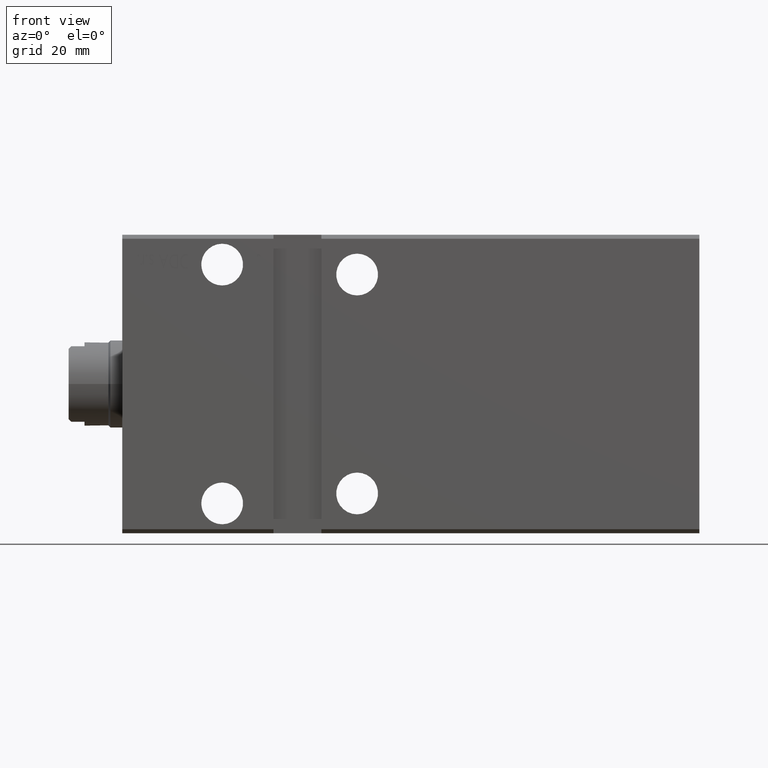
[diagram: clean part render]
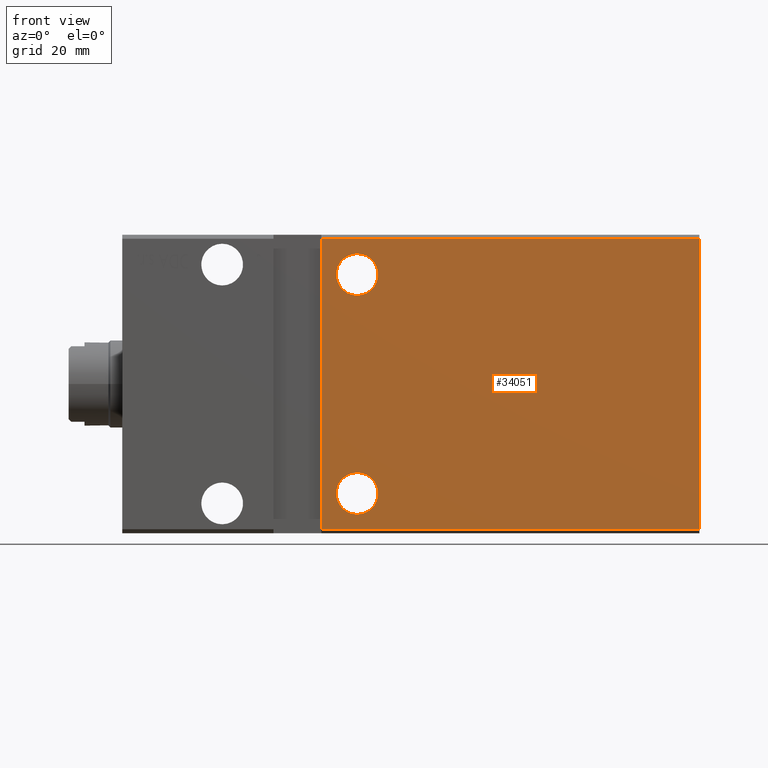
[diagram: same view with one face highlighted and labeled with its STEP entity id]
A machine part, front view. The second image highlights one B-rep face of the part: STEP entity #34051.
In plain terms, the highlighted planar face has unit normal (0, 1, 0).
Its self-contained STEP definition (entity closure, byte-faithful):
#284 = LINE ( 'NONE', #15479, #21459 ) ;
#1167 = CIRCLE ( 'NONE', #16465, 5.250000000000004441 ) ;
#1399 = CARTESIAN_POINT ( 'NONE',  ( 59.00000000000000711, -27.50000000000000355, 27.49999999999999645 ) ) ;
#1527 = CARTESIAN_POINT ( 'NONE',  ( 59.00000000000000711, -27.50000000000000355, 32.74999999999999289 ) ) ;
#1874 = FACE_OUTER_BOUND ( 'NONE', #30192, .T. ) ;
#3062 = DIRECTION ( 'NONE',  ( 0.000000000000000000, -1.000000000000000000, -5.507058653894625853E-17 ) ) ;
#3243 = ORIENTED_EDGE ( 'NONE', *, *, #32302, .T. ) ;
#3660 = AXIS2_PLACEMENT_3D ( 'NONE', #1399, #35352, #7964 ) ;
#4596 = AXIS2_PLACEMENT_3D ( 'NONE', #12598, #16005, #28193 ) ;
#4894 = EDGE_CURVE ( 'NONE', #12722, #13821, #37974, .T. ) ;
#6531 = EDGE_CURVE ( 'NONE', #37508, #12722, #32692, .T. ) ;
#6564 = VECTOR ( 'NONE', #10780, 1000.000000000000000 ) ;
#7830 = CARTESIAN_POINT ( 'NONE',  ( 145.0000000000000000, -27.50000000000000711, 36.50000000000000711 ) ) ;
#7964 = DIRECTION ( 'NONE',  ( 0.000000000000000000, 0.000000000000000000, 1.000000000000000000 ) ) ;
#8465 = VERTEX_POINT ( 'NONE', #32858 ) ;
#8950 = EDGE_LOOP ( 'NONE', ( #25914, #24065 ) ) ;
#9767 = VERTEX_POINT ( 'NONE', #25660 ) ;
#9805 = VERTEX_POINT ( 'NONE', #28672 ) ;
#10282 = FACE_BOUND ( 'NONE', #29711, .T. ) ;
#10780 = DIRECTION ( 'NONE',  ( -0.000000000000000000, -9.251858538542971581E-17, 1.000000000000000000 ) ) ;
#11056 = EDGE_CURVE ( 'NONE', #30209, #39244, #18623, .T. ) ;
#12335 = CARTESIAN_POINT ( 'NONE',  ( 145.0000000000000000, -27.50000000000000711, 36.50000000000000711 ) ) ;
#12598 = CARTESIAN_POINT ( 'NONE',  ( 59.00000000000000711, -27.50000000000000355, 27.49999999999999645 ) ) ;
#12722 = VERTEX_POINT ( 'NONE', #17731 ) ;
#13821 = VERTEX_POINT ( 'NONE', #36440 ) ;
#15035 = ORIENTED_EDGE ( 'NONE', *, *, #4894, .F. ) ;
#15479 = CARTESIAN_POINT ( 'NONE',  ( 145.0000000000000000, -27.50000000000000711, 36.50000000000000711 ) ) ;
#16005 = DIRECTION ( 'NONE',  ( -0.000000000000000000, 1.000000000000000000, 5.507058653894625853E-17 ) ) ;
#16465 = AXIS2_PLACEMENT_3D ( 'NONE', #36227, #3062, #18448 ) ;
#17043 = AXIS2_PLACEMENT_3D ( 'NONE', #7830, #23440, #20048 ) ;
#17731 = CARTESIAN_POINT ( 'NONE',  ( 49.99999999999999289, -27.50000000000000000, -36.49999999999997868 ) ) ;
#18448 = DIRECTION ( 'NONE',  ( 0.000000000000000000, 0.000000000000000000, -1.000000000000000000 ) ) ;
#18549 = ORIENTED_EDGE ( 'NONE', *, *, #37677, .T. ) ;
#18623 = CIRCLE ( 'NONE', #4596, 5.249999999999997335 ) ;
#19573 = EDGE_CURVE ( 'NONE', #8465, #37508, #30924, .T. ) ;
#20048 = DIRECTION ( 'NONE',  ( 0.000000000000000000, -4.752667057470705491E-17, 1.000000000000000000 ) ) ;
#21459 = VECTOR ( 'NONE', #31252, 1000.000000000000000 ) ;
#22674 = CARTESIAN_POINT ( 'NONE',  ( 59.00000000000001421, -27.50000000000000355, -27.50000000000000355 ) ) ;
#23429 = CIRCLE ( 'NONE', #3660, 5.249999999999997335 ) ;
#23440 = DIRECTION ( 'NONE',  ( -0.000000000000000000, 1.000000000000000000, 4.752667057470705491E-17 ) ) ;
#24064 = CIRCLE ( 'NONE', #25972, 5.250000000000004441 ) ;
#24065 = ORIENTED_EDGE ( 'NONE', *, *, #26905, .F. ) ;
#25660 = CARTESIAN_POINT ( 'NONE',  ( 59.00000000000001421, -27.50000000000000355, -32.75000000000000711 ) ) ;
#25834 = CARTESIAN_POINT ( 'NONE',  ( 145.0000000000000000, -27.50000000000000355, -36.49999999999998579 ) ) ;
#25914 = ORIENTED_EDGE ( 'NONE', *, *, #30260, .F. ) ;
#25972 = AXIS2_PLACEMENT_3D ( 'NONE', #22674, #34293, #31680 ) ;
#26349 = VECTOR ( 'NONE', #27149, 1000.000000000000000 ) ;
#26905 = EDGE_CURVE ( 'NONE', #9805, #9767, #1167, .T. ) ;
#27038 = FACE_BOUND ( 'NONE', #8950, .T. ) ;
#27149 = DIRECTION ( 'NONE',  ( 0.000000000000000000, 4.752667057470705491E-17, -1.000000000000000000 ) ) ;
#27314 = CARTESIAN_POINT ( 'NONE',  ( 145.0000000000000000, -27.50000000000000355, -36.49999999999998579 ) ) ;
#28193 = DIRECTION ( 'NONE',  ( 0.000000000000000000, 0.000000000000000000, 1.000000000000000000 ) ) ;
#28672 = CARTESIAN_POINT ( 'NONE',  ( 59.00000000000001421, -27.50000000000000355, -22.25000000000000000 ) ) ;
#29711 = EDGE_LOOP ( 'NONE', ( #34898, #18549 ) ) ;
#30097 = ORIENTED_EDGE ( 'NONE', *, *, #19573, .F. ) ;
#30192 = EDGE_LOOP ( 'NONE', ( #3243, #15035, #33759, #30097 ) ) ;
#30209 = VERTEX_POINT ( 'NONE', #37483 ) ;
#30260 = EDGE_CURVE ( 'NONE', #9767, #9805, #24064, .T. ) ;
#30924 = LINE ( 'NONE', #12335, #26349 ) ;
#31252 = DIRECTION ( 'NONE',  ( -1.000000000000000000, -0.000000000000000000, -0.000000000000000000 ) ) ;
#31680 = DIRECTION ( 'NONE',  ( 0.000000000000000000, 0.000000000000000000, -1.000000000000000000 ) ) ;
#32302 = EDGE_CURVE ( 'NONE', #8465, #13821, #284, .T. ) ;
#32692 = LINE ( 'NONE', #27314, #35991 ) ;
#32858 = CARTESIAN_POINT ( 'NONE',  ( 145.0000000000000000, -27.50000000000000711, 36.50000000000000711 ) ) ;
#33759 = ORIENTED_EDGE ( 'NONE', *, *, #6531, .F. ) ;
#34051 = ADVANCED_FACE ( 'NONE', ( #27038, #1874, #10282 ), #38608, .F. ) ;
#34293 = DIRECTION ( 'NONE',  ( 0.000000000000000000, -1.000000000000000000, -5.507058653894625853E-17 ) ) ;
#34898 = ORIENTED_EDGE ( 'NONE', *, *, #11056, .T. ) ;
#35352 = DIRECTION ( 'NONE',  ( -0.000000000000000000, 1.000000000000000000, 5.507058653894625853E-17 ) ) ;
#35991 = VECTOR ( 'NONE', #36472, 1000.000000000000000 ) ;
#36227 = CARTESIAN_POINT ( 'NONE',  ( 59.00000000000001421, -27.50000000000000355, -27.50000000000000355 ) ) ;
#36440 = CARTESIAN_POINT ( 'NONE',  ( 49.99999999999999289, -27.50000000000000711, 36.50000000000000711 ) ) ;
#36472 = DIRECTION ( 'NONE',  ( -1.000000000000000000, -0.000000000000000000, -0.000000000000000000 ) ) ;
#37483 = CARTESIAN_POINT ( 'NONE',  ( 59.00000000000000711, -27.50000000000000355, 22.25000000000000000 ) ) ;
#37508 = VERTEX_POINT ( 'NONE', #25834 ) ;
#37677 = EDGE_CURVE ( 'NONE', #39244, #30209, #23429, .T. ) ;
#37974 = LINE ( 'NONE', #38364, #6564 ) ;
#38364 = CARTESIAN_POINT ( 'NONE',  ( 49.99999999999999289, -27.50000000000000711, 37.50000000000000711 ) ) ;
#38608 = PLANE ( 'NONE',  #17043 ) ;
#39244 = VERTEX_POINT ( 'NONE', #1527 ) ;